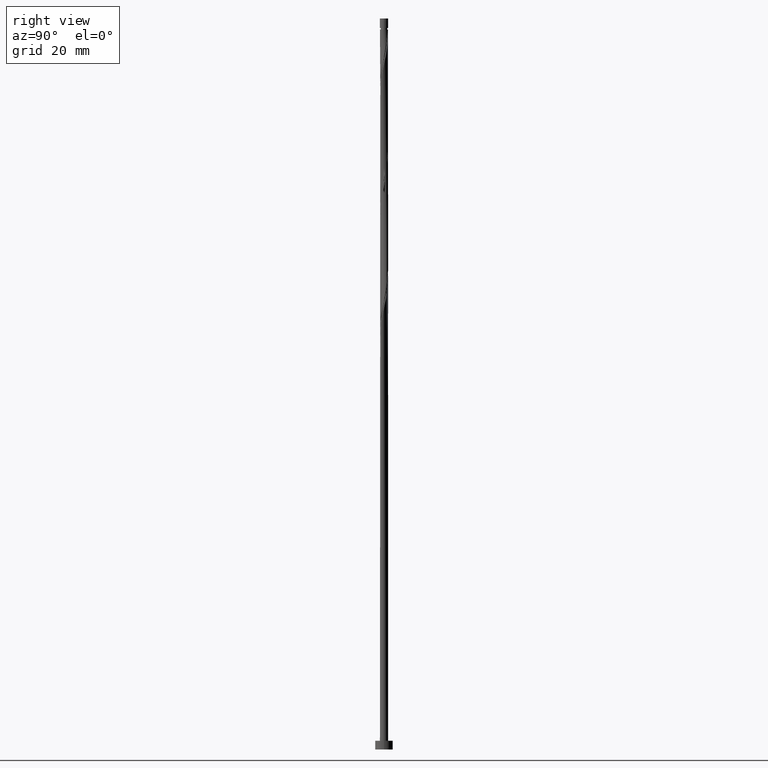
[diagram: clean part render]
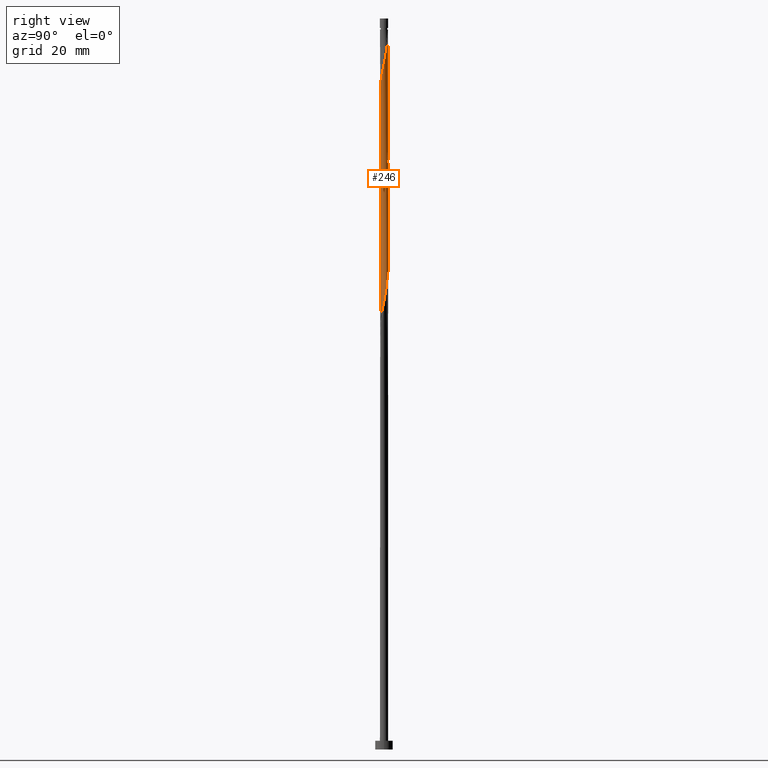
[diagram: same view with one face highlighted and labeled with its STEP entity id]
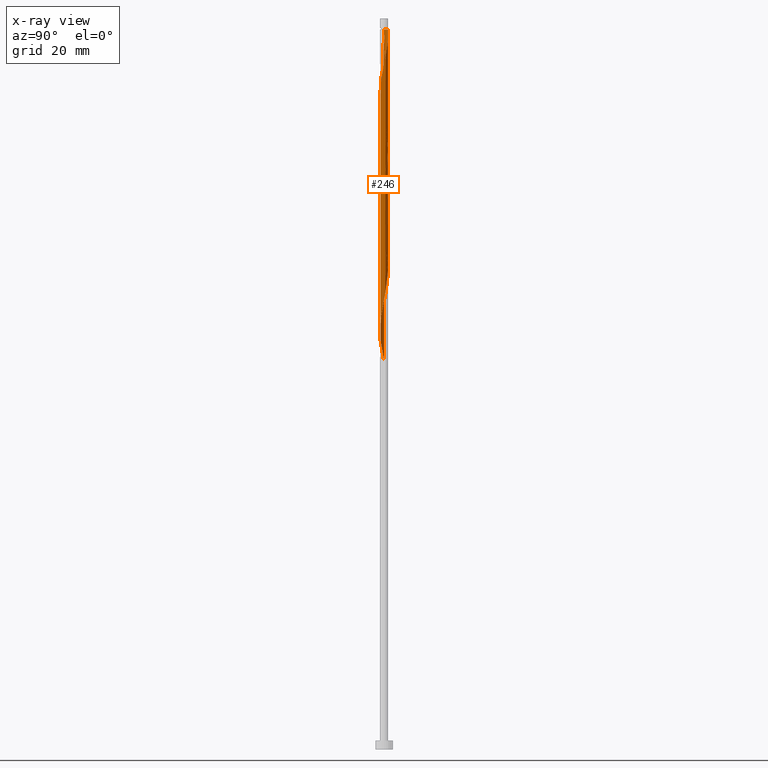
[diagram: x-ray of the same camera — body ghosted, the highlighted face saturated]
A machine part, right view. The second image highlights one B-rep face of the part: STEP entity #246.
The next image is the same camera in x-ray: the body ghosted, the highlighted face saturated — about 0% of this face is hidden behind the body in this view.
In plain terms, the highlighted cylindrical surface (bore or boss wall) has radius 0.7 mm, axis along (-0, -0, -1).
Its self-contained STEP definition (entity closure, byte-faithful):
#1 = CARTESIAN_POINT ( 'NONE',  ( -0.07950515814432478068, -0.6954702939942489781, 111.6431601845076500 ) ) ;
#10 = VERTEX_POINT ( 'NONE', #195 ) ;
#18 = CARTESIAN_POINT ( 'NONE',  ( -0.6999999999999970690, 0.000000000000000000, 123.1014935178409644 ) ) ;
#26 = DIRECTION ( 'NONE',  ( -0.000000000000000000, -0.000000000000000000, -1.000000000000000000 ) ) ;
#36 = CARTESIAN_POINT ( 'NONE',  ( 0.3444661581381039950, 0.6093792463627035749, 101.2264935178409502 ) ) ;
#43 = CARTESIAN_POINT ( 'NONE',  ( 0.5908483059530988957, 0.3913952458978565696, 99.66399351784093597 ) ) ;
#68 = CARTESIAN_POINT ( 'NONE',  ( -0.5908483059530988957, -0.3913952458978566806, 89.24732685117430719 ) ) ;
#91 = VERTEX_POINT ( 'NONE', #701 ) ;
#99 = EDGE_CURVE ( 'NONE', #411, #894, #799, .T. ) ;
#108 = CARTESIAN_POINT ( 'NONE',  ( 0.6954702939942489781, 0.07950515814432453088, 77.26816018450763579 ) ) ;
#121 = DIRECTION ( 'NONE',  ( -0.000000000000000000, -0.000000000000000000, -1.000000000000000000 ) ) ;
#129 = CARTESIAN_POINT ( 'NONE',  ( -0.6093792463627035749, -0.3444661581381037729, 108.5181601845076216 ) ) ;
#133 = CARTESIAN_POINT ( 'NONE',  ( -0.1896568314209444717, 0.6828779140186467256, 103.8306601845076216 ) ) ;
#134 = EDGE_LOOP ( 'NONE', ( #404, #1348, #1310, #1423, #884, #326, #892, #710 ) ) ;
#135 = LINE ( 'NONE', #601, #691 ) ;
#142 = LINE ( 'NONE', #608, #1158 ) ;
#156 = CARTESIAN_POINT ( 'NONE',  ( 0.6828779140186465035, -0.1896568314209446382, 116.3306601845076074 ) ) ;
#159 = CARTESIAN_POINT ( 'NONE',  ( -0.7000000000000006217, 0.07035264706814639557, 107.8069913839033518 ) ) ;
#162 = CARTESIAN_POINT ( 'NONE',  ( 0.2905260386594005761, -0.6368631099858725886, 93.93482685117427877 ) ) ;
#167 = CARTESIAN_POINT ( 'NONE',  ( 0.1896568314209446382, 0.6828779140186465035, 121.5389935178409928 ) ) ;
#172 = CARTESIAN_POINT ( 'NONE',  ( -0.2905260386594006872, 0.6368631099858725886, 83.51816018450763579 ) ) ;
#180 = DIRECTION ( 'NONE',  ( -0.000000000000000000, -0.000000000000000000, -1.000000000000000000 ) ) ;
#195 = CARTESIAN_POINT ( 'NONE',  ( -0.7000000000000009548, -9.108309940797330805E-16, 66.47462929264457898 ) ) ;
#204 = CARTESIAN_POINT ( 'NONE',  ( 0.5908483059530988957, 0.3913952458978565696, 78.83066018450760737 ) ) ;
#210 = DIRECTION ( 'NONE',  ( -0.000000000000000000, -0.000000000000000000, -1.000000000000000000 ) ) ;
#217 = CARTESIAN_POINT ( 'NONE',  ( 0.4409823490186483563, 0.5548211666952563847, 79.87232685117429298 ) ) ;
#246 = ADVANCED_FACE ( 'NONE', ( #366 ), #1152, .T. ) ;
#251 = CARTESIAN_POINT ( 'NONE',  ( 0.2479499672575593838, 0.6639373260301500990, 101.7473268511742930 ) ) ;
#259 = CARTESIAN_POINT ( 'NONE',  ( -0.7000000000000010658, -2.998620556641096825E-16, 108.1412959593112078 ) ) ;
#264 = CARTESIAN_POINT ( 'NONE',  ( -0.6639373260301502100, 0.2479499672575592728, 106.9556601845076216 ) ) ;
#272 = CARTESIAN_POINT ( 'NONE',  ( 0.1896568314209444162, -0.6828779140186467256, 93.41399351784097860 ) ) ;
#274 = AXIS2_PLACEMENT_3D ( 'NONE', #828, #121, #930 ) ;
#280 = CARTESIAN_POINT ( 'NONE',  ( -0.7080626739698517857, 0.03064651513229522256, 87.16399351784096439 ) ) ;
#290 = CARTESIAN_POINT ( 'NONE',  ( -0.07950515814432469741, 0.6954702939942489781, 82.47649351784096439 ) ) ;
#294 = CARTESIAN_POINT ( 'NONE',  ( 0.3913952458978566806, -0.5908483059530990067, 94.45566018450763579 ) ) ;
#315 = CARTESIAN_POINT ( 'NONE',  ( -0.6828779140186467256, -0.1896568314209444717, 67.37232685117429298 ) ) ;
#324 = CARTESIAN_POINT ( 'NONE',  ( 0.6639373260301500990, -0.2479499672575593283, 75.70566018450765000 ) ) ;
#326 = ORIENTED_EDGE ( 'NONE', *, *, #734, .F. ) ;
#334 = CARTESIAN_POINT ( 'NONE',  ( 0.07950515814432458639, -0.6954702939942489781, 72.05982685117432140 ) ) ;
#338 = CARTESIAN_POINT ( 'NONE',  ( -0.7000000000000010658, 3.823241209717397836E-16, 106.8116910763707210 ) ) ;
#339 = VECTOR ( 'NONE', #180, 1000.000000000000000 ) ;
#366 = FACE_OUTER_BOUND ( 'NONE', #134, .T. ) ;
#377 = CARTESIAN_POINT ( 'NONE',  ( 0.6093792463627035749, 0.3444661581381037174, 118.9348268511742930 ) ) ;
#404 = ORIENTED_EDGE ( 'NONE', *, *, #672, .F. ) ;
#411 = VERTEX_POINT ( 'NONE', #18 ) ;
#412 = CARTESIAN_POINT ( 'NONE',  ( 0.03064651513229518787, 0.7080626739698517857, 81.95566018450765000 ) ) ;
#418 = CARTESIAN_POINT ( 'NONE',  ( 0.1392982411949273969, 0.6860000000000008313, 102.2681601845076216 ) ) ;
#431 = CARTESIAN_POINT ( 'NONE',  ( 0.6860000000000008313, 0.1392982411949270916, 117.8931601845076358 ) ) ;
#439 = CARTESIAN_POINT ( 'NONE',  ( -0.2905260386594006872, -0.6368631099858725886, 110.6014935178409644 ) ) ;
#443 = CARTESIAN_POINT ( 'NONE',  ( 0.000000000000000000, 0.000000000000000000, 123.1014935178409644 ) ) ;
#446 = CARTESIAN_POINT ( 'NONE',  ( 0.5159153274858737648, 0.4731082062965565327, 79.35149351784099281 ) ) ;
#449 = CARTESIAN_POINT ( 'NONE',  ( 0.03064651513229507337, -0.7080626739698516747, 112.1639935178409502 ) ) ;
#459 =( BOUNDED_CURVE ( )  B_SPLINE_CURVE ( 2, ( #338, #1201, #1144, #716, #129, #1242, #1440, #932, #439, #1015, #1, #449, #910, #706, #1139, #1035, #463, #1256, #595, #156, #1166, #624, #431, #845, #377, #543, #789, #903, #497, #167, #783, #1066, #1402 ),
 .UNSPECIFIED., .F., .T. ) 
 B_SPLINE_CURVE_WITH_KNOTS ( ( 3, 2, 2, 2, 2, 2, 2, 2, 2, 2, 2, 2, 2, 2, 2, 2, 3 ),
 ( 0.5545322023138553602, 0.5625000000000000000, 0.5749999999999999556, 0.5875000000000000222, 0.5999999999999999778, 0.6125000000000000444, 0.6250000000000000000, 0.6374999999999999556, 0.6500000000000000222, 0.6624999999999999778, 0.6750000000000000444, 0.6875000000000000000, 0.6999999999999999556, 0.7125000000000000222, 0.7249999999999999778, 0.7375000000000000444, 0.7500000000000000000 ),
 .UNSPECIFIED. ) 
 CURVE ( )  GEOMETRIC_REPRESENTATION_ITEM ( )  RATIONAL_B_SPLINE_CURVE ( ( 0.9039174447099540544, 0.9019565955404836854, 0.9090909090909321533, 0.8978984914501479953, 0.9090909090909321533, 0.8978984914501479953, 0.9090909090909321533, 0.8978984914501479953, 0.9090909090909321533, 0.8978984914501479953, 0.9090909090909321533, 0.8978984914501479953, 0.9090909090909321533, 0.8978984914501479953, 0.9090909090909321533, 0.8978984914501479953, 0.9090909090909321533, 0.8978984914501479953, 0.9090909090909321533, 0.8978984914501479953, 0.9090909090909321533, 0.8978984914501479953, 0.9090909090909321533, 0.8978984914501479953, 0.9090909090909321533, 0.8978984914501479953, 0.9090909090909321533, 0.8978984914501479953, 0.9090909090909321533, 0.8978984914501479953, 0.9090909090909321533, 0.8978984914501479953, 0.9090909090909321533 ) ) 
 REPRESENTATION_ITEM ( '' )  );
#463 = CARTESIAN_POINT ( 'NONE',  ( 0.5159153274858735427, -0.4731082062965565327, 114.7681601845076358 ) ) ;
#478 = CARTESIAN_POINT ( 'NONE',  ( -0.2905260386594006872, 0.6368631099858725886, 104.3514935178409644 ) ) ;
#484 = CARTESIAN_POINT ( 'NONE',  ( -0.6954702939942489781, -0.07950515814432462802, 66.85149351784099281 ) ) ;
#485 = CARTESIAN_POINT ( 'NONE',  ( -0.4731082062965565327, 0.5159153274858735427, 105.3931601845076642 ) ) ;
#487 = DIRECTION ( 'NONE',  ( -0.000000000000000000, -0.000000000000000000, -1.000000000000000000 ) ) ;
#494 = CARTESIAN_POINT ( 'NONE',  ( -0.6999999999999999556, 0.000000000000000000, 125.0000000000000000 ) ) ;
#497 = CARTESIAN_POINT ( 'NONE',  ( 0.2905260386594007982, 0.6368631099858725886, 121.0181601845076500 ) ) ;
#505 = CARTESIAN_POINT ( 'NONE',  ( -0.07950515814432469741, 0.6954702939942489781, 103.3098268511743072 ) ) ;
#507 = CARTESIAN_POINT ( 'NONE',  ( -0.4409823490186481898, -0.5548211666952563847, 90.28899351784093597 ) ) ;
#512 =( BOUNDED_CURVE ( )  B_SPLINE_CURVE ( 2, ( #614, #744, #1172, #1060, #652, #862, #877, #294, #162, #272, #752, #1180, #631, #1070, #1088, #507, #866, #68, #1294, #526, #642, #280, #769, #1078, #516, #761, #1418, #1188, #172, #1412, #290, #412, #885, #1309, #568, #217, #446, #204, #1096, #1331, #108, #1357, #914, #324, #552, #539, #562, #795, #534, #1445, #334, #806, #1233, #1430, #696, #923, #1321, #780, #1002, #315, #484, #830, #599 ),
 .UNSPECIFIED., .F., .T. ) 
 B_SPLINE_CURVE_WITH_KNOTS ( ( 3, 2, 2, 2, 2, 2, 2, 2, 2, 2, 2, 2, 2, 2, 2, 2, 2, 2, 2, 2, 2, 2, 2, 2, 2, 2, 2, 2, 2, 2, 2, 3 ),
 ( 0.5545322023138552492, 0.5625000000000000000, 0.5749999999999999556, 0.5875000000000000222, 0.5999999999999999778, 0.6125000000000000444, 0.6250000000000000000, 0.6374999999999999556, 0.6500000000000000222, 0.6624999999999999778, 0.6750000000000000444, 0.6875000000000000000, 0.6999999999999999556, 0.7125000000000000222, 0.7249999999999999778, 0.7375000000000000444, 0.7500000000000000000, 0.7624999999999999556, 0.7750000000000000222, 0.7874999999999999778, 0.8000000000000000444, 0.8125000000000000000, 0.8249999999999999556, 0.8375000000000000222, 0.8499999999999999778, 0.8625000000000000444, 0.8750000000000000000, 0.8874999999999999556, 0.8999999999999999112, 0.9125000000000000888, 0.9250000000000000444, 0.9295322023138552492 ),
 .UNSPECIFIED. ) 
 CURVE ( )  GEOMETRIC_REPRESENTATION_ITEM ( )  RATIONAL_B_SPLINE_CURVE ( ( 0.9039174447099542764, 0.9019565955404835744, 0.9090909090909321533, 0.8978984914501479953, 0.9090909090909321533, 0.8978984914501479953, 0.9090909090909321533, 0.8978984914501479953, 0.9090909090909321533, 0.8978984914501479953, 0.9090909090909321533, 0.8978984914501479953, 0.9090909090909321533, 0.8978984914501479953, 0.9090909090909321533, 0.8978984914501479953, 0.9090909090909321533, 0.8978984914501479953, 0.9090909090909321533, 0.8978984914501479953, 0.9090909090909321533, 0.8978984914501479953, 0.9090909090909321533, 0.8978984914501479953, 0.9090909090909321533, 0.8978984914501479953, 0.9090909090909321533, 0.8978984914501479953, 0.9090909090909321533, 0.8978984914501479953, 0.9090909090909321533, 0.8978984914501479953, 0.9090909090909321533, 0.8978984914501479953, 0.9090909090909321533, 0.8978984914501479953, 0.9090909090909321533, 0.8978984914501479953, 0.9090909090909321533, 0.8978984914501479953, 0.9090909090909321533, 0.8978984914501479953, 0.9090909090909321533, 0.8978984914501479953, 0.9090909090909321533, 0.8978984914501479953, 0.9090909090909321533, 0.8978984914501479953, 0.9090909090909321533, 0.8978984914501479953, 0.9090909090909321533, 0.8978984914501479953, 0.9090909090909321533, 0.8978984914501479953, 0.9090909090909321533, 0.8978984914501479953, 0.9090909090909321533, 0.8978984914501479953, 0.9090909090909321533, 0.8978984914501479953, 0.9090909090909321533, 0.9050328050005964631, 0.9039174447099542764 ) ) 
 REPRESENTATION_ITEM ( '' )  );
#516 = CARTESIAN_POINT ( 'NONE',  ( -0.6093792463627035749, 0.3444661581381038284, 85.60149351784097860 ) ) ;
#526 = CARTESIAN_POINT ( 'NONE',  ( -0.6828779140186467256, -0.1896568314209444717, 88.20566018450763579 ) ) ;
#534 = CARTESIAN_POINT ( 'NONE',  ( 0.2905260386594005761, -0.6368631099858725886, 73.10149351784095018 ) ) ;
#539 = CARTESIAN_POINT ( 'NONE',  ( 0.5548211666952563847, -0.4409823490186483563, 74.66399351784097860 ) ) ;
#540 = VERTEX_POINT ( 'NONE', #1389 ) ;
#543 = CARTESIAN_POINT ( 'NONE',  ( 0.5548211666952566068, 0.4409823490186480788, 119.4556601845076500 ) ) ;
#552 = CARTESIAN_POINT ( 'NONE',  ( 0.6093792463627035749, -0.3444661581381038840, 75.18482685117432140 ) ) ;
#562 = CARTESIAN_POINT ( 'NONE',  ( 0.4731082062965565327, -0.5159153274858737648, 74.14316018450763579 ) ) ;
#568 = CARTESIAN_POINT ( 'NONE',  ( 0.3444661581381039950, 0.6093792463627035749, 80.39316018450762158 ) ) ;
#595 = CARTESIAN_POINT ( 'NONE',  ( 0.6368631099858725886, -0.2905260386594006872, 115.8098268511743072 ) ) ;
#599 = CARTESIAN_POINT ( 'NONE',  ( -0.7000000000000009548, -9.108309940797330805E-16, 66.47462929264457898 ) ) ;
#601 = CARTESIAN_POINT ( 'NONE',  ( -0.6999999999999999556, 0.000000000000000000, 125.0000000000000000 ) ) ;
#608 = CARTESIAN_POINT ( 'NONE',  ( 0.6999999999999999556, 8.572527594031471957E-17, 125.0000000000000000 ) ) ;
#614 = CARTESIAN_POINT ( 'NONE',  ( 0.7000000000000009548, 8.283689287721028808E-16, 97.72462929264456477 ) ) ;
#619 = CARTESIAN_POINT ( 'NONE',  ( -0.6093792463627035749, 0.3444661581381038284, 106.4348268511743072 ) ) ;
#624 = CARTESIAN_POINT ( 'NONE',  ( 0.7080626739698516747, 0.03064651513229503174, 117.3723268511742930 ) ) ;
#631 = CARTESIAN_POINT ( 'NONE',  ( -0.1392982411949273136, -0.6860000000000008313, 91.85149351784093597 ) ) ;
#642 = CARTESIAN_POINT ( 'NONE',  ( -0.6954702939942489781, -0.07950515814432462802, 87.68482685117430719 ) ) ;
#652 = CARTESIAN_POINT ( 'NONE',  ( 0.6093792463627035749, -0.3444661581381038840, 96.01816018450763579 ) ) ;
#672 = EDGE_CURVE ( 'NONE', #411, #816, #135, .T. ) ;
#691 = VECTOR ( 'NONE', #26, 1000.000000000000000 ) ;
#696 = CARTESIAN_POINT ( 'NONE',  ( -0.3444661581381038840, -0.6093792463627035749, 69.97649351784095018 ) ) ;
#701 = CARTESIAN_POINT ( 'NONE',  ( -0.7000000000000010658, 3.823241209717397836E-16, 106.8116910763707210 ) ) ;
#702 = CARTESIAN_POINT ( 'NONE',  ( -0.1392982411949305055, 0.6859999999999963904, 123.1014935178409928 ) ) ;
#706 = CARTESIAN_POINT ( 'NONE',  ( 0.2479499672575591063, -0.6639373260301502100, 113.2056601845076358 ) ) ;
#710 = ORIENTED_EDGE ( 'NONE', *, *, #1192, .F. ) ;
#716 = CARTESIAN_POINT ( 'NONE',  ( -0.6639373260301502100, -0.2479499672575591618, 107.9973268511742788 ) ) ;
#734 = EDGE_CURVE ( 'NONE', #540, #1332, #142, .T. ) ;
#736 = CARTESIAN_POINT ( 'NONE',  ( 0.7000000000000009548, 0.03988161621250231603, 97.91414038185185120 ) ) ;
#744 = CARTESIAN_POINT ( 'NONE',  ( 0.7000000000000008438, -0.07035264706814568780, 97.39032471723673723 ) ) ;
#752 = CARTESIAN_POINT ( 'NONE',  ( 0.07950515814432458639, -0.6954702939942489781, 92.89316018450762158 ) ) ;
#761 = CARTESIAN_POINT ( 'NONE',  ( -0.5548211666952563847, 0.4409823490186481898, 85.08066018450759316 ) ) ;
#769 = CARTESIAN_POINT ( 'NONE',  ( -0.6860000000000008313, 0.1392982411949272858, 86.64316018450762158 ) ) ;
#774 = CARTESIAN_POINT ( 'NONE',  ( 0.4409823490186483563, 0.5548211666952563847, 100.7056601845076216 ) ) ;
#780 = CARTESIAN_POINT ( 'NONE',  ( -0.5908483059530988957, -0.3913952458978566806, 68.41399351784095018 ) ) ;
#783 = CARTESIAN_POINT ( 'NONE',  ( 0.07950515814432487782, 0.6954702939942489781, 122.0598268511743356 ) ) ;
#789 = CARTESIAN_POINT ( 'NONE',  ( 0.4731082062965567547, 0.5159153274858735427, 119.9764935178409644 ) ) ;
#795 = CARTESIAN_POINT ( 'NONE',  ( 0.3913952458978566806, -0.5908483059530990067, 73.62232685117429298 ) ) ;
#799 = CIRCLE ( 'NONE', #895, 0.6999999999999970690 ) ;
#806 = CARTESIAN_POINT ( 'NONE',  ( -0.03064651513229528501, -0.7080626739698517857, 71.53899351784097860 ) ) ;
#816 = VERTEX_POINT ( 'NONE', #855 ) ;
#828 = CARTESIAN_POINT ( 'NONE',  ( 0.000000000000000000, 0.000000000000000000, 125.0000000000000000 ) ) ;
#830 = CARTESIAN_POINT ( 'NONE',  ( -0.7000000000000009548, -0.03988161621250241318, 66.66414038185185120 ) ) ;
#836 = CARTESIAN_POINT ( 'NONE',  ( 0.7000000000000009548, 8.283689287721028808E-16, 97.72462929264456477 ) ) ;
#838 = EDGE_CURVE ( 'NONE', #91, #10, #967, .T. ) ;
#845 = CARTESIAN_POINT ( 'NONE',  ( 0.6639373260301502100, 0.2479499672575591063, 118.4139935178409644 ) ) ;
#855 = CARTESIAN_POINT ( 'NONE',  ( -0.7000000000000010658, -2.998620556641096825E-16, 108.1412959593112078 ) ) ;
#862 = CARTESIAN_POINT ( 'NONE',  ( 0.5548211666952563847, -0.4409823490186483563, 95.49732685117429298 ) ) ;
#866 = CARTESIAN_POINT ( 'NONE',  ( -0.5159153274858737648, -0.4731082062965565327, 89.76816018450765000 ) ) ;
#867 = EDGE_CURVE ( 'NONE', #1332, #10, #512, .T. ) ;
#877 = CARTESIAN_POINT ( 'NONE',  ( 0.4731082062965565327, -0.5159153274858737648, 94.97649351784099281 ) ) ;
#884 = ORIENTED_EDGE ( 'NONE', *, *, #867, .F. ) ;
#885 = CARTESIAN_POINT ( 'NONE',  ( 0.1392982411949273969, 0.6860000000000008313, 81.43482685117429298 ) ) ;
#888 = CARTESIAN_POINT ( 'NONE',  ( -0.6860000000000008313, 0.1392982411949272858, 107.4764935178409644 ) ) ;
#892 = ORIENTED_EDGE ( 'NONE', *, *, #734, .T. ) ;
#894 = VERTEX_POINT ( 'NONE', #702 ) ;
#895 = AXIS2_PLACEMENT_3D ( 'NONE', #443, #210, #1354 ) ;
#903 = CARTESIAN_POINT ( 'NONE',  ( 0.3913952458978567917, 0.5908483059530988957, 120.4973268511742930 ) ) ;
#910 = CARTESIAN_POINT ( 'NONE',  ( 0.1392982411949271748, -0.6860000000000008313, 112.6848268511743072 ) ) ;
#914 = CARTESIAN_POINT ( 'NONE',  ( 0.6860000000000008313, -0.1392982411949273969, 76.22649351784099281 ) ) ;
#923 = CARTESIAN_POINT ( 'NONE',  ( -0.4409823490186481898, -0.5548211666952563847, 69.45566018450765000 ) ) ;
#930 = DIRECTION ( 'NONE',  ( -1.000000000000000000, 0.000000000000000000, 0.000000000000000000 ) ) ;
#932 = CARTESIAN_POINT ( 'NONE',  ( -0.3913952458978566806, -0.5908483059530988957, 110.0806601845076216 ) ) ;
#946 = CARTESIAN_POINT ( 'NONE',  ( 0.6368631099858725886, 0.2905260386594003541, 99.14316018450762158 ) ) ;
#967 = LINE ( 'NONE', #494, #339 ) ;
#993 = CARTESIAN_POINT ( 'NONE',  ( 0.03064651513229518787, 0.7080626739698517857, 102.7889935178409502 ) ) ;
#1002 = CARTESIAN_POINT ( 'NONE',  ( -0.6368631099858725886, -0.2905260386594005761, 67.89316018450765000 ) ) ;
#1015 = CARTESIAN_POINT ( 'NONE',  ( -0.1896568314209445827, -0.6828779140186465035, 111.1223268511743072 ) ) ;
#1035 = CARTESIAN_POINT ( 'NONE',  ( 0.4409823490186480788, -0.5548211666952566068, 114.2473268511743214 ) ) ;
#1059 = CARTESIAN_POINT ( 'NONE',  ( 0.5159153274858737648, 0.4731082062965565327, 100.1848268511742788 ) ) ;
#1060 = CARTESIAN_POINT ( 'NONE',  ( 0.6639373260301500990, -0.2479499672575593283, 96.53899351784096439 ) ) ;
#1066 = CARTESIAN_POINT ( 'NONE',  ( -0.03064651513229499358, 0.7080626739698516747, 122.5806601845076216 ) ) ;
#1068 = CARTESIAN_POINT ( 'NONE',  ( -0.3913952458978566806, 0.5908483059530988957, 104.8723268511742788 ) ) ;
#1070 = CARTESIAN_POINT ( 'NONE',  ( -0.2479499672575592728, -0.6639373260301500990, 91.33066018450762158 ) ) ;
#1071 =( BOUNDED_CURVE ( )  B_SPLINE_CURVE ( 2, ( #259, #159, #888, #264, #619, #1157, #485, #1068, #478, #133, #505, #993, #418, #251, #36, #774, #1059, #43, #946, #1315, #1280, #736, #836 ),
 .UNSPECIFIED., .F., .T. ) 
 B_SPLINE_CURVE_WITH_KNOTS ( ( 3, 2, 2, 2, 2, 2, 2, 2, 2, 2, 2, 3 ),
 ( 0.4295322023138553047, 0.4375000000000000000, 0.4500000000000000111, 0.4625000000000000222, 0.4749999999999999778, 0.4874999999999999889, 0.5000000000000000000, 0.5124999999999999556, 0.5250000000000000222, 0.5374999999999999778, 0.5500000000000000444, 0.5545322023138552492 ),
 .UNSPECIFIED. ) 
 CURVE ( )  GEOMETRIC_REPRESENTATION_ITEM ( )  RATIONAL_B_SPLINE_CURVE ( ( 0.9039174447099543874, 0.9019565955404837965, 0.9090909090909321533, 0.8978984914501479953, 0.9090909090909321533, 0.8978984914501479953, 0.9090909090909321533, 0.8978984914501479953, 0.9090909090909321533, 0.8978984914501479953, 0.9090909090909321533, 0.8978984914501479953, 0.9090909090909321533, 0.8978984914501479953, 0.9090909090909321533, 0.8978984914501479953, 0.9090909090909321533, 0.8978984914501479953, 0.9090909090909321533, 0.8978984914501479953, 0.9090909090909321533, 0.9050328050005964631, 0.9039174447099542764 ) ) 
 REPRESENTATION_ITEM ( '' )  );
#1078 = CARTESIAN_POINT ( 'NONE',  ( -0.6639373260301502100, 0.2479499672575592728, 86.12232685117429298 ) ) ;
#1088 = CARTESIAN_POINT ( 'NONE',  ( -0.3444661581381038840, -0.6093792463627035749, 90.80982685117429298 ) ) ;
#1096 = CARTESIAN_POINT ( 'NONE',  ( 0.6368631099858725886, 0.2905260386594003541, 78.30982685117429298 ) ) ;
#1139 = CARTESIAN_POINT ( 'NONE',  ( 0.3444661581381037174, -0.6093792463627035749, 113.7264935178409786 ) ) ;
#1144 = CARTESIAN_POINT ( 'NONE',  ( -0.6860000000000008313, -0.1392982411949272026, 107.4764935178409644 ) ) ;
#1152 = CYLINDRICAL_SURFACE ( 'NONE', #274, 0.6999999999999999556 ) ;
#1157 = CARTESIAN_POINT ( 'NONE',  ( -0.5548211666952563847, 0.4409823490186481898, 105.9139935178409644 ) ) ;
#1158 = VECTOR ( 'NONE', #487, 1000.000000000000000 ) ;
#1166 = CARTESIAN_POINT ( 'NONE',  ( 0.6954702939942489781, -0.07950515814432480843, 116.8514935178409786 ) ) ;
#1172 = CARTESIAN_POINT ( 'NONE',  ( 0.6860000000000008313, -0.1392982411949273969, 97.05982685117427877 ) ) ;
#1180 = CARTESIAN_POINT ( 'NONE',  ( -0.03064651513229528501, -0.7080626739698517857, 92.37232685117430719 ) ) ;
#1188 = CARTESIAN_POINT ( 'NONE',  ( -0.3913952458978566806, 0.5908483059530988957, 84.03899351784095018 ) ) ;
#1192 = EDGE_CURVE ( 'NONE', #816, #1332, #1071, .T. ) ;
#1201 = CARTESIAN_POINT ( 'NONE',  ( -0.7000000000000008438, -0.07035264706814649271, 107.1459956517785486 ) ) ;
#1208 = CARTESIAN_POINT ( 'NONE',  ( 0.7000000000000009548, 8.283689287721029795E-16, 97.72462929264456477 ) ) ;
#1233 = CARTESIAN_POINT ( 'NONE',  ( -0.1392982411949273136, -0.6860000000000008313, 71.01816018450762158 ) ) ;
#1242 = CARTESIAN_POINT ( 'NONE',  ( -0.5548211666952566068, -0.4409823490186481343, 109.0389935178409644 ) ) ;
#1256 = CARTESIAN_POINT ( 'NONE',  ( 0.5908483059530988957, -0.3913952458978567361, 115.2889935178409644 ) ) ;
#1280 = CARTESIAN_POINT ( 'NONE',  ( 0.6954702939942489781, 0.07950515814432453088, 98.10149351784097860 ) ) ;
#1294 = CARTESIAN_POINT ( 'NONE',  ( -0.6368631099858725886, -0.2905260386594005761, 88.72649351784097860 ) ) ;
#1309 = CARTESIAN_POINT ( 'NONE',  ( 0.2479499672575593838, 0.6639373260301500990, 80.91399351784095018 ) ) ;
#1310 = ORIENTED_EDGE ( 'NONE', *, *, #1330, .F. ) ;
#1315 = CARTESIAN_POINT ( 'NONE',  ( 0.6828779140186467256, 0.1896568314209444162, 98.62232685117430719 ) ) ;
#1321 = CARTESIAN_POINT ( 'NONE',  ( -0.5159153274858737648, -0.4731082062965565327, 68.93482685117430719 ) ) ;
#1330 = EDGE_CURVE ( 'NONE', #91, #894, #459, .T. ) ;
#1331 = CARTESIAN_POINT ( 'NONE',  ( 0.6828779140186467256, 0.1896568314209444162, 77.78899351784095018 ) ) ;
#1332 = VERTEX_POINT ( 'NONE', #1208 ) ;
#1348 = ORIENTED_EDGE ( 'NONE', *, *, #99, .T. ) ;
#1354 = DIRECTION ( 'NONE',  ( -1.000000000000000000, 0.000000000000000000, 0.000000000000000000 ) ) ;
#1357 = CARTESIAN_POINT ( 'NONE',  ( 0.7080626739698517857, -0.03064651513229531624, 76.74732685117430719 ) ) ;
#1389 = CARTESIAN_POINT ( 'NONE',  ( 0.6999999999999999556, 8.572527594031471957E-17, 123.1014935178409928 ) ) ;
#1402 = CARTESIAN_POINT ( 'NONE',  ( -0.1392982411949305055, 0.6859999999999963904, 123.1014935178409928 ) ) ;
#1412 = CARTESIAN_POINT ( 'NONE',  ( -0.1896568314209444717, 0.6828779140186467256, 82.99732685117427877 ) ) ;
#1418 = CARTESIAN_POINT ( 'NONE',  ( -0.4731082062965565327, 0.5159153274858735427, 84.55982685117429298 ) ) ;
#1423 = ORIENTED_EDGE ( 'NONE', *, *, #838, .T. ) ;
#1430 = CARTESIAN_POINT ( 'NONE',  ( -0.2479499672575592728, -0.6639373260301500990, 70.49732685117429298 ) ) ;
#1440 = CARTESIAN_POINT ( 'NONE',  ( -0.4731082062965565327, -0.5159153274858735427, 109.5598268511742930 ) ) ;
#1445 = CARTESIAN_POINT ( 'NONE',  ( 0.1896568314209444162, -0.6828779140186467256, 72.58066018450763579 ) ) ;